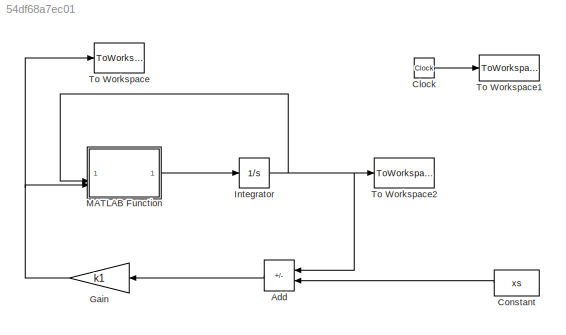
MODEL slx_54df68a7ec01
KIND model
CONFIG AbsTol = auto
CONFIG EnableMultiTasking = off
CONFIG FixedStep = auto
CONFIG MaxStep = auto
CONFIG MinStep = auto
CONFIG RelTol = 1e-3
CONFIG SampleTimeConstraint = Unconstrained
CONFIG SolverName = ode45
CONFIG StartTime = 0.0
CONFIG StopTime = 20.0
BLOCK [Sum] Add
  IconShape = rectangular
  Inputs = -+
  NameLocation = top
BLOCK [Clock] Clock
BLOCK [Constant] Constant
  NameLocation = top
  Value = xs
BLOCK [Gain] Gain
  Gain = k1
  Multiplication = Matrix(K*u)
  NameLocation = top
BLOCK [Integrator] Integrator
  InitialCondition = x0
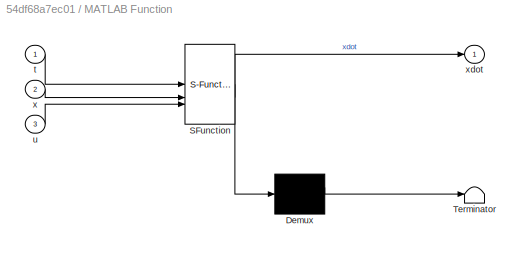
BLOCK [SubSystem] MATLAB Function
  ErrorFcn = Stateflow.Translate.translate
  PermitHierarchicalResolution = ExplicitOnly
  SFBlockType = MATLAB Function
  TreatAsAtomicUnit = on
BLOCK [Demux] MATLAB Function/ Demux 
  Outputs = 1
BLOCK [S-Function] MATLAB Function/ SFunction 
  EnableBusSupport = on
  FunctionName = sf_sfun
  PortCounts = [3 2]
  SFcnIsStateOwnerBlock = off
  SFunctionDeploymentMode = off
  Tag = Stateflow S-Function 2
BLOCK [Terminator] MATLAB Function/ Terminator 
BLOCK [Inport] MATLAB Function/t
BLOCK [Inport] MATLAB Function/u
  Port = 3
BLOCK [Inport] MATLAB Function/x
  Port = 2
BLOCK [Outport] MATLAB Function/xdot
BLOCK [ToWorkspace] To Workspace
  FixptAsFi = on
  MaxDataPoints = inf
  SampleTime = -1
  Save2DSignal = 2-D array (concatenate along first dimension)
  VariableName = vf_nonlin
BLOCK [ToWorkspace] To Workspace1
  FixptAsFi = on
  MaxDataPoints = inf
  SampleTime = -1
  Save2DSignal = 2-D array (concatenate along first dimension)
  VariableName = tf_nonlin
BLOCK [ToWorkspace] To Workspace2
  FixptAsFi = on
  MaxDataPoints = inf
  SampleTime = -1
  Save2DSignal = 2-D array (concatenate along first dimension)
  VariableName = xf_nonlin
LINE Add:1 -> Gain:1
LINE Clock:1 -> To Workspace1:1
LINE Constant:1 -> Add:2
NET Gain:1 -> MATLAB Function:3, To Workspace:1
NET Integrator:1 -> Add:1, MATLAB Function:2, To Workspace2:1
LINE MATLAB Function:1 -> Integrator:1
note: NET lines group one-source signal fan-out (src -> all destinations, sorted); 1:1 wires keep LINE
CHART MATLAB Function states=1 transitions=1
  STATE_LABEL 'eML_blk_kernel()'
  STATE_LABEL 'SCRIPT:\nfunction xdot  = ica19(t,x,u)\n\nxdot = ica19(t,x,u);\n'
CHART  states=0 transitions=0
